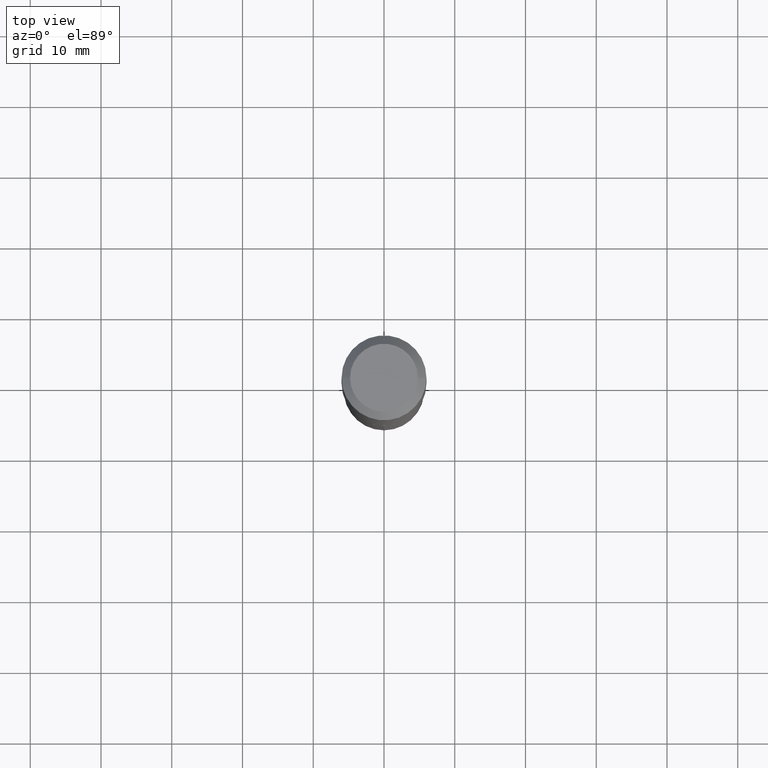
[diagram: clean part render]
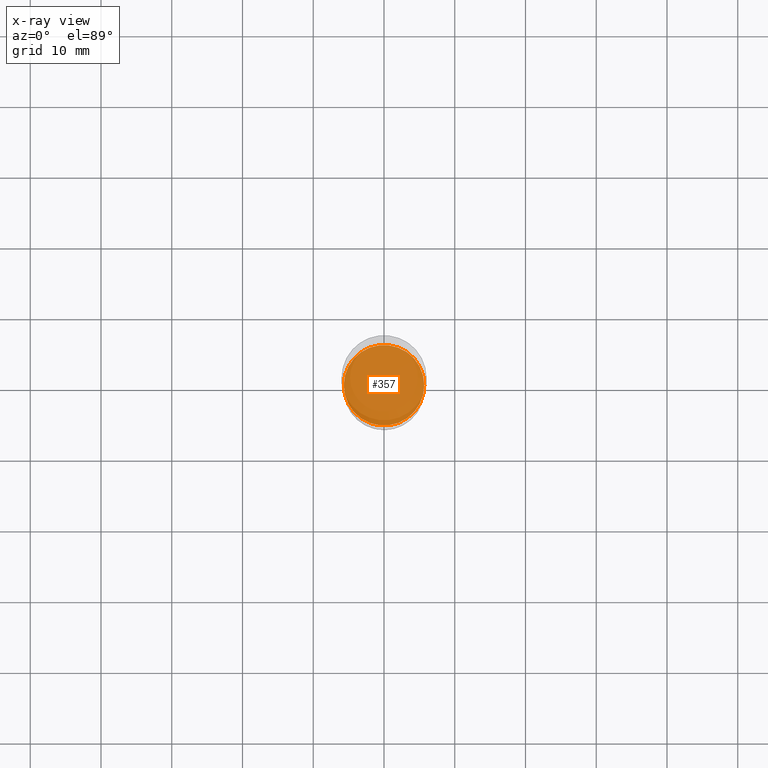
[diagram: x-ray — body ghosted, one internal face saturated and labeled with its STEP entity id]
A machine part, top view, then the same camera in x-ray: the body is ghosted and one INTERNAL B-rep face — a face not visible from any outside direction — is saturated and labeled: STEP entity #357.
In plain terms, the highlighted planar face has unit normal (-0, 0, 1).
Its self-contained STEP definition (entity closure, byte-faithful):
#29 = FACE_OUTER_BOUND ( 'NONE', #221, .T. ) ;
#43 = DIRECTION ( 'NONE',  ( -2.445468806185136597E-29, 3.491481338843145583E-15, 1.000000000000000000 ) ) ;
#57 = CIRCLE ( 'NONE', #282, 0.2238999999999999879 ) ;
#77 = DIRECTION ( 'NONE',  ( 1.000000000000000000, -6.982962677686269077E-15, 0.000000000000000000 ) ) ;
#92 = ORIENTED_EDGE ( 'NONE', *, *, #116, .F. ) ;
#104 = EDGE_CURVE ( 'NONE', #260, #279, #57, .T. ) ;
#109 = DIRECTION ( 'NONE',  ( 1.000000000000000000, -6.982962677686269077E-15, 0.000000000000000000 ) ) ;
#116 = EDGE_CURVE ( 'NONE', #279, #260, #136, .T. ) ;
#136 = CIRCLE ( 'NONE', #415, 0.2238999999999999879 ) ;
#142 = PLANE ( 'NONE',  #462 ) ;
#218 = CARTESIAN_POINT ( 'NONE',  ( 5.969144809017300159E-29, -8.522356799982234543E-15, -2.440900000000000070 ) ) ;
#221 = EDGE_LOOP ( 'NONE', ( #92, #326 ) ) ;
#260 = VERTEX_POINT ( 'NONE', #392 ) ;
#279 = VERTEX_POINT ( 'NONE', #358 ) ;
#282 = AXIS2_PLACEMENT_3D ( 'NONE', #409, #421, #77 ) ;
#320 = DIRECTION ( 'NONE',  ( 1.000000000000000000, -6.982962677686265922E-15, 4.876176775795935793E-29 ) ) ;
#326 = ORIENTED_EDGE ( 'NONE', *, *, #104, .F. ) ;
#357 = ADVANCED_FACE ( 'NONE', ( #29 ), #142, .F. ) ;
#358 = CARTESIAN_POINT ( 'NONE',  ( 0.2238999999999999879, -1.008584214351618994E-14, -2.440900000000000070 ) ) ;
#392 = CARTESIAN_POINT ( 'NONE',  ( -0.2238999999999999879, -6.928802387441259112E-15, -2.440900000000000070 ) ) ;
#409 = CARTESIAN_POINT ( 'NONE',  ( 5.969144809017300159E-29, -8.522356799982234543E-15, -2.440900000000000070 ) ) ;
#415 = AXIS2_PLACEMENT_3D ( 'NONE', #218, #43, #109 ) ;
#421 = DIRECTION ( 'NONE',  ( -2.445468806185136597E-29, 3.491481338843145583E-15, 1.000000000000000000 ) ) ;
#434 = CARTESIAN_POINT ( 'NONE',  ( 3.889485735741518307E-29, -1.150054695975673190E-14, -2.440900000000000070 ) ) ;
#462 = AXIS2_PLACEMENT_3D ( 'NONE', #434, #480, #320 ) ;
#480 = DIRECTION ( 'NONE',  ( -2.438088387897960049E-29, 3.491481338843145188E-15, 1.000000000000000000 ) ) ;